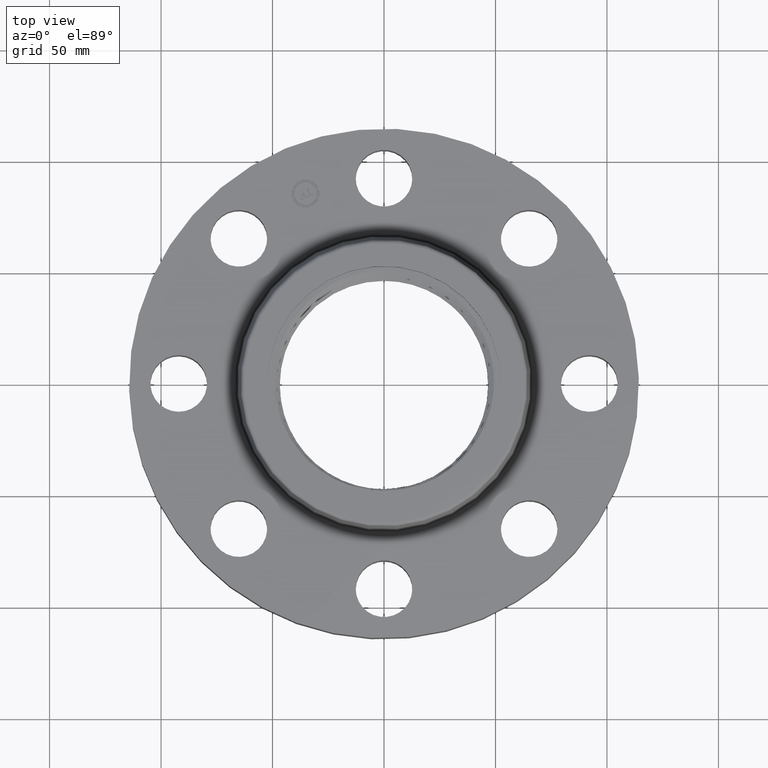
[diagram: clean part render]
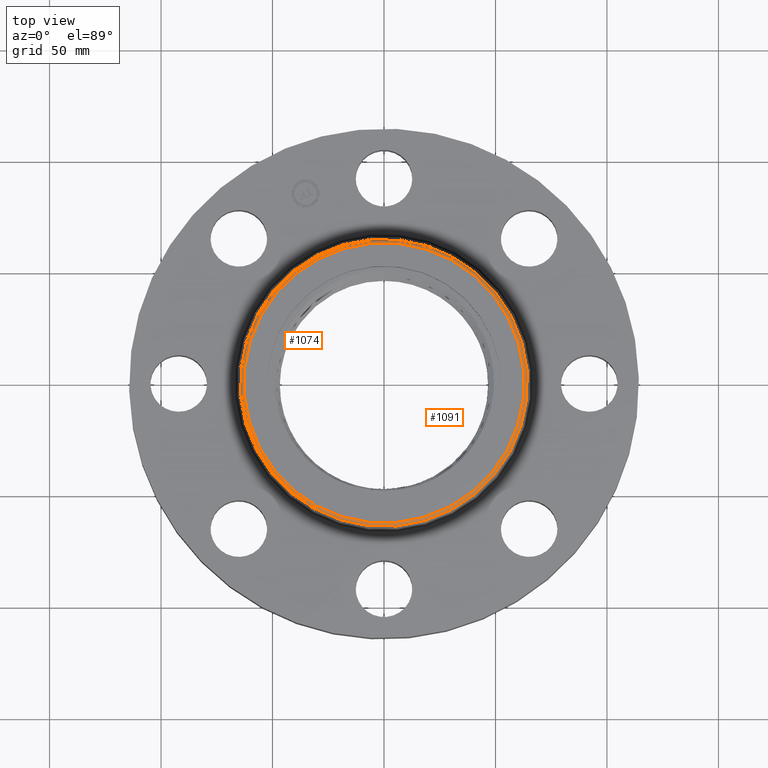
[diagram: same view with one multi-face feature highlighted, each face labeled with its STEP entity id]
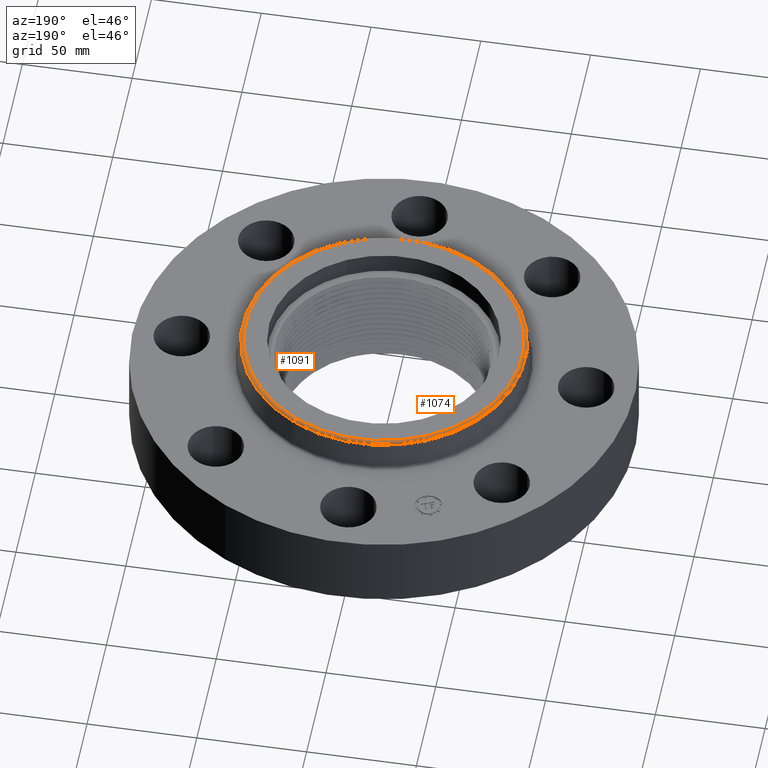
[diagram: same view with one multi-face feature highlighted, each face labeled with its STEP entity id]
A machine part, top view. The highlighted faces form ONE feature: a constant-radius fillet chain: 2 tangent blend faces with common blend radius 1.524 mm. The faces share edges in the B-rep.
A second angle (auxiliary view) of the same feature is appended — it is thin or edge-on in the first view.
Their STEP definitions:
[1] entity #1091 (Torus):
#1038=AXIS2_PLACEMENT_3D('Torus Axis2P3D',#1035,#1036,#1037) ;
#1051=AXIS2_PLACEMENT_3D('Circle Axis2P3D',#1049,#1050,$) ;
#1065=AXIS2_PLACEMENT_3D('Circle Axis2P3D',#1063,#1064,$) ;
#1077=AXIS2_PLACEMENT_3D('Circle Axis2P3D',#1075,#1076,$) ;
#1082=AXIS2_PLACEMENT_3D('Circle Axis2P3D',#1080,#1081,$) ;
#1035=CARTESIAN_POINT('Axis2P3D Location',(0.,0.,1.88000000001)) ;
#1044=CARTESIAN_POINT('Vertex',(-1.21534344222,-2.22467124864,1.89041889067)) ;
#1046=CARTESIAN_POINT('Vertex',(1.21534344222,2.22467124864,1.89041889067)) ;
#1049=CARTESIAN_POINT('Axis2P3D Location',(-1.18701492297,-2.17281624199,1.88000000001)) ;
#1053=CARTESIAN_POINT('Vertex',(-1.18701492297,-2.17281624199,1.94000000001)) ;
#1060=CARTESIAN_POINT('Vertex',(1.18701492297,2.17281624199,1.94000000001)) ;
#1063=CARTESIAN_POINT('Axis2P3D Location',(1.18701492297,2.17281624199,1.88000000001)) ;
#1075=CARTESIAN_POINT('Axis2P3D Location',(0.,0.,1.89041889067)) ;
#1080=CARTESIAN_POINT('Axis2P3D Location',(0.,0.,1.94000000001)) ;
#1036=DIRECTION('Axis2P3D Direction',(0.,0.,-0.0393700787402)) ;
#1037=DIRECTION('Axis2P3D XDirection',(0.0188750212049,0.0345504945626,0.)) ;
#1050=DIRECTION('Axis2P3D Direction',(0.0345504945626,-0.0188750212049,0.)) ;
#1064=DIRECTION('Axis2P3D Direction',(-0.0345504945626,0.0188750212049,0.)) ;
#1076=DIRECTION('Axis2P3D Direction',(0.,0.,-0.0393700787402)) ;
#1081=DIRECTION('Axis2P3D Direction',(0.,0.,-0.0393700787402)) ;
#1086=ORIENTED_EDGE('',*,*,#1079,.F.) ;
#1087=ORIENTED_EDGE('',*,*,#1067,.T.) ;
#1088=ORIENTED_EDGE('',*,*,#1084,.T.) ;
#1089=ORIENTED_EDGE('',*,*,#1055,.F.) ;
#1091=ADVANCED_FACE('PartBody',(#1090),#1039,.T.) ;
#1052=CIRCLE('generated circle',#1051,0.0600000000002) ;
#1066=CIRCLE('generated circle',#1065,0.0600000000002) ;
#1078=CIRCLE('generated circle',#1077,2.53499937812) ;
#1083=CIRCLE('generated circle',#1082,2.47591091294) ;
#1039=TOROIDAL_SURFACE('homeo Torus',#1038,2.47591091294,0.0600000000002) ;
#1055=EDGE_CURVE('',#1045,#1054,#1052,.F.) ;
#1067=EDGE_CURVE('',#1047,#1061,#1066,.F.) ;
#1079=EDGE_CURVE('',#1047,#1045,#1078,.T.) ;
#1084=EDGE_CURVE('',#1061,#1054,#1083,.T.) ;
#1085=EDGE_LOOP('',(#1086,#1087,#1088,#1089)) ;
#1090=FACE_OUTER_BOUND('',#1085,.T.) ;
#1045=VERTEX_POINT('',#1044) ;
#1047=VERTEX_POINT('',#1046) ;
#1054=VERTEX_POINT('',#1053) ;
#1061=VERTEX_POINT('',#1060) ;
[2] entity #1074 (Torus):
#1038=AXIS2_PLACEMENT_3D('Torus Axis2P3D',#1035,#1036,#1037) ;
#1042=AXIS2_PLACEMENT_3D('Circle Axis2P3D',#1040,#1041,$) ;
#1051=AXIS2_PLACEMENT_3D('Circle Axis2P3D',#1049,#1050,$) ;
#1058=AXIS2_PLACEMENT_3D('Circle Axis2P3D',#1056,#1057,$) ;
#1065=AXIS2_PLACEMENT_3D('Circle Axis2P3D',#1063,#1064,$) ;
#1035=CARTESIAN_POINT('Axis2P3D Location',(0.,0.,1.88000000001)) ;
#1040=CARTESIAN_POINT('Axis2P3D Location',(0.,0.,1.89041889067)) ;
#1044=CARTESIAN_POINT('Vertex',(-1.21534344222,-2.22467124864,1.89041889067)) ;
#1046=CARTESIAN_POINT('Vertex',(1.21534344222,2.22467124864,1.89041889067)) ;
#1049=CARTESIAN_POINT('Axis2P3D Location',(-1.18701492297,-2.17281624199,1.88000000001)) ;
#1053=CARTESIAN_POINT('Vertex',(-1.18701492297,-2.17281624199,1.94000000001)) ;
#1056=CARTESIAN_POINT('Axis2P3D Location',(0.,0.,1.94000000001)) ;
#1060=CARTESIAN_POINT('Vertex',(1.18701492297,2.17281624199,1.94000000001)) ;
#1063=CARTESIAN_POINT('Axis2P3D Location',(1.18701492297,2.17281624199,1.88000000001)) ;
#1036=DIRECTION('Axis2P3D Direction',(0.,0.,-0.0393700787402)) ;
#1037=DIRECTION('Axis2P3D XDirection',(0.0188750212049,0.0345504945626,0.)) ;
#1041=DIRECTION('Axis2P3D Direction',(0.,0.,-0.0393700787402)) ;
#1050=DIRECTION('Axis2P3D Direction',(0.0345504945626,-0.0188750212049,0.)) ;
#1057=DIRECTION('Axis2P3D Direction',(0.,0.,-0.0393700787402)) ;
#1064=DIRECTION('Axis2P3D Direction',(-0.0345504945626,0.0188750212049,0.)) ;
#1069=ORIENTED_EDGE('',*,*,#1048,.F.) ;
#1070=ORIENTED_EDGE('',*,*,#1055,.T.) ;
#1071=ORIENTED_EDGE('',*,*,#1062,.T.) ;
#1072=ORIENTED_EDGE('',*,*,#1067,.F.) ;
#1074=ADVANCED_FACE('PartBody',(#1073),#1039,.T.) ;
#1043=CIRCLE('generated circle',#1042,2.53499937812) ;
#1052=CIRCLE('generated circle',#1051,0.0600000000002) ;
#1059=CIRCLE('generated circle',#1058,2.47591091294) ;
#1066=CIRCLE('generated circle',#1065,0.0600000000002) ;
#1039=TOROIDAL_SURFACE('homeo Torus',#1038,2.47591091294,0.0600000000002) ;
#1048=EDGE_CURVE('',#1045,#1047,#1043,.T.) ;
#1055=EDGE_CURVE('',#1045,#1054,#1052,.F.) ;
#1062=EDGE_CURVE('',#1054,#1061,#1059,.T.) ;
#1067=EDGE_CURVE('',#1047,#1061,#1066,.F.) ;
#1068=EDGE_LOOP('',(#1069,#1070,#1071,#1072)) ;
#1073=FACE_OUTER_BOUND('',#1068,.T.) ;
#1045=VERTEX_POINT('',#1044) ;
#1047=VERTEX_POINT('',#1046) ;
#1054=VERTEX_POINT('',#1053) ;
#1061=VERTEX_POINT('',#1060) ;